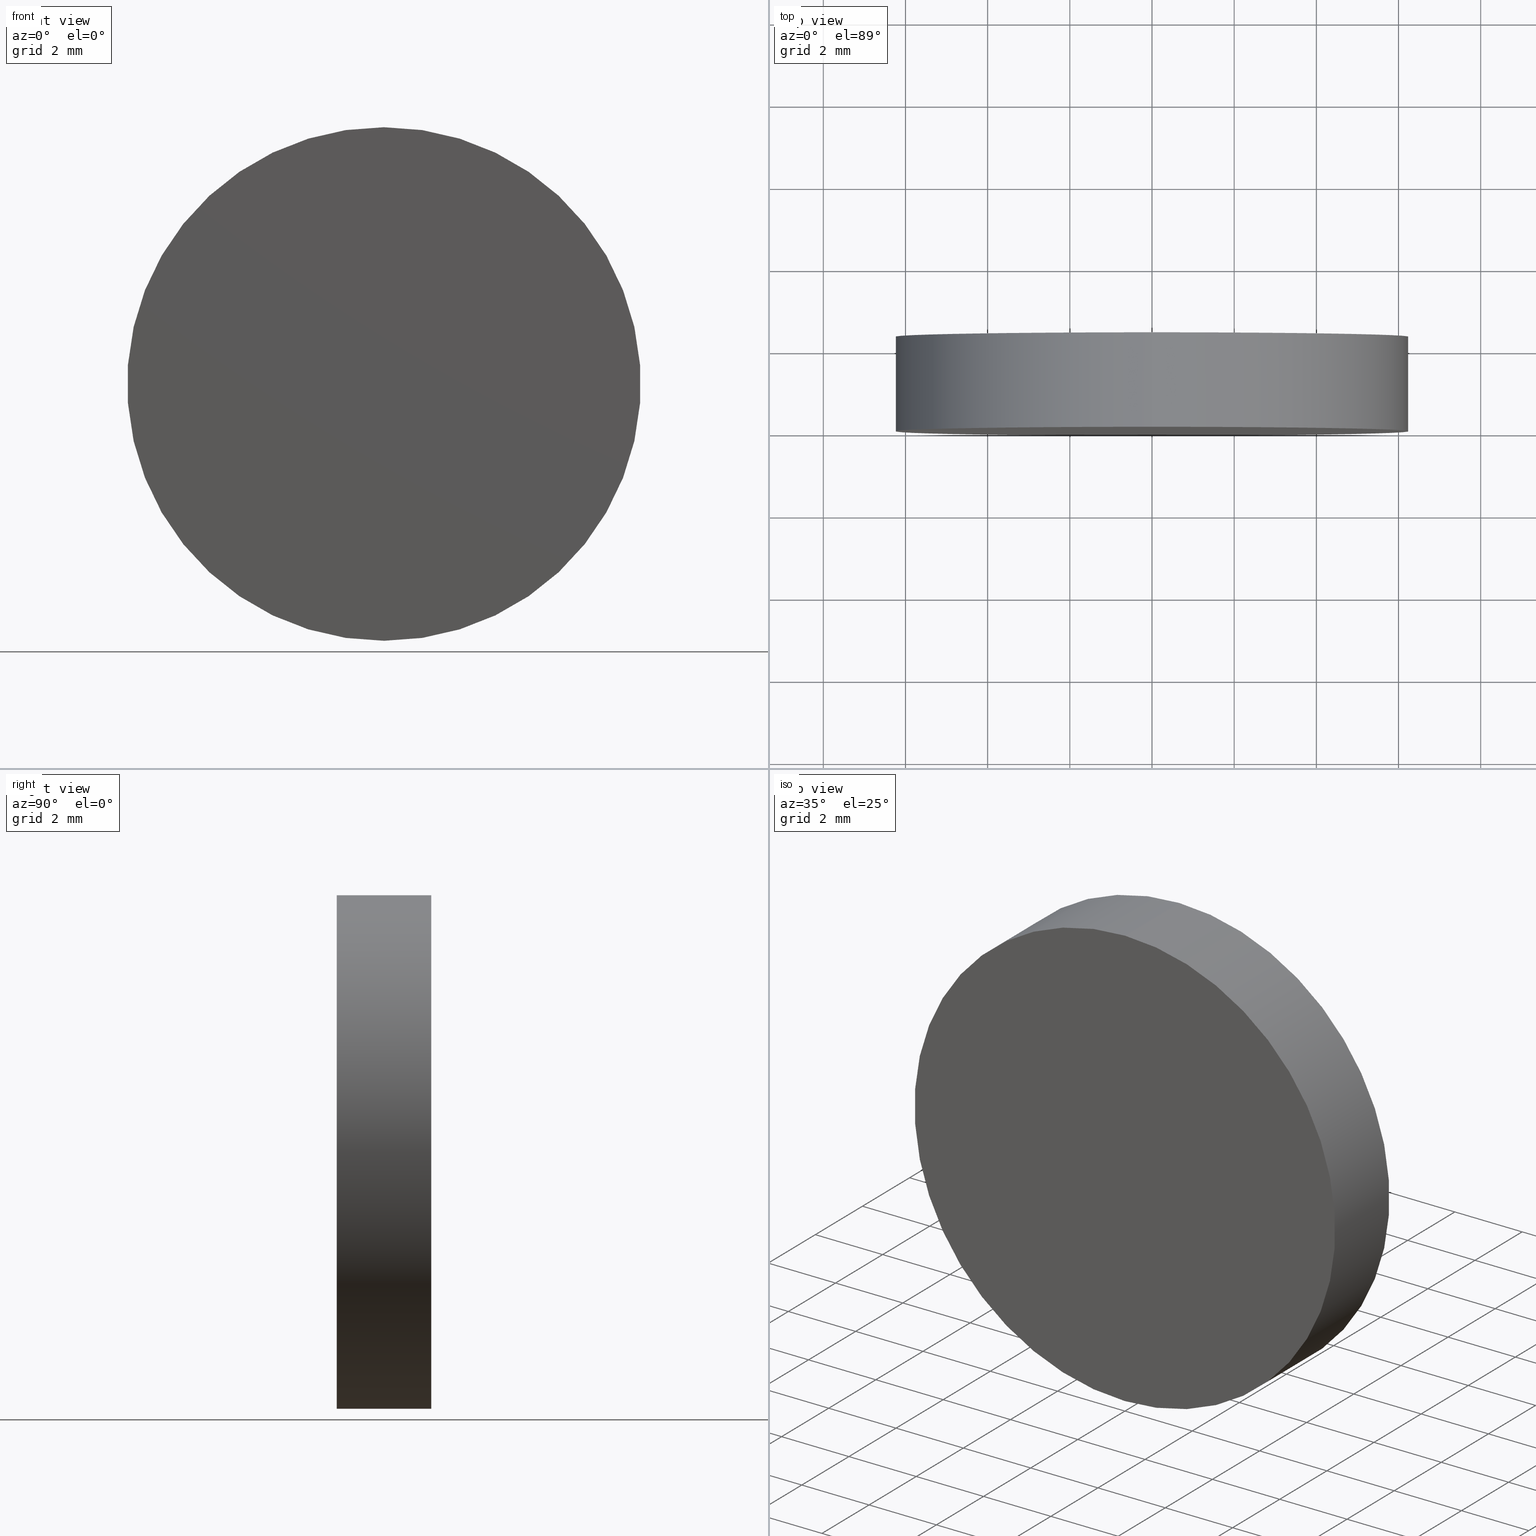
[diagram: canonical four-view strip — front | top / right | iso, engineering-drawing reading convention]
A machine part, canonical four-view strip (front | top / right | iso — engineering-drawing reading convention). The complete STEP part file that produces these views, byte-faithful:
ISO-10303-21;
HEADER;
FILE_DESCRIPTION (( 'STEP AP214' ),
    '1' );
FILE_NAME ('248576.STEP',
    '2019-08-02T08:42:04',
    ( 'user' ),
    ( '΢���й�' ),
    'SwSTEP 2.0',
    'SolidWorks 2016',
    '' );
FILE_SCHEMA (( 'AUTOMOTIVE_DESIGN' ));
ENDSEC;

DATA;
#1 = COLOUR_RGB ( '',1.000000000000000000, 1.000000000000000000, 1.000000000000000000 ) ;
#2 = PRODUCT_RELATED_PRODUCT_CATEGORY ( 'part', '', ( #131 ) ) ;
#3 = DIRECTION ( 'NONE',  ( 0.0000000000000000000, 0.0000000000000000000, 1.000000000000000000 ) ) ;
#4 = ORIENTED_EDGE ( 'NONE', *, *, #97, .F. ) ;
#5 = APPLICATION_CONTEXT ( 'automotive_design' ) ;
#6 = CARTESIAN_POINT ( 'NONE',  ( 0.0000000000000000000, 0.0000000000000000000, 0.0000000000000000000 ) ) ;
#7 =( NAMED_UNIT ( * ) SI_UNIT ( $, .STERADIAN. ) SOLID_ANGLE_UNIT ( ) );
#8 = CIRCLE ( 'NONE', #108, 6.250000000000000000 ) ;
#9 = ORIENTED_EDGE ( 'NONE', *, *, #35, .F. ) ;
#10 = FACE_OUTER_BOUND ( 'NONE', #90, .T. ) ;
#11 = AXIS2_PLACEMENT_3D ( 'NONE', #99, #21, #3 ) ;
#12 = EDGE_CURVE ( 'NONE', #66, #55, #112, .T. ) ;
#13 = DIRECTION ( 'NONE',  ( 0.0000000000000000000, 0.0000000000000000000, 1.000000000000000000 ) ) ;
#14 = FILL_AREA_STYLE ('',( #83 ) ) ;
#15 = APPLICATION_PROTOCOL_DEFINITION ( 'draft international standard', 'automotive_design', 1998, #5 ) ;
#16 = MECHANICAL_DESIGN_GEOMETRIC_PRESENTATION_REPRESENTATION (  '', ( #120 ), #75 ) ;
#17 = EDGE_LOOP ( 'NONE', ( #87, #9, #95, #29 ) ) ;
#18 = SURFACE_STYLE_FILL_AREA ( #89 ) ;
#19 = ORIENTED_EDGE ( 'NONE', *, *, #35, .T. ) ;
#20 = DIRECTION ( 'NONE',  ( -0.0000000000000000000, -1.000000000000000000, -0.0000000000000000000 ) ) ;
#21 = DIRECTION ( 'NONE',  ( 0.0000000000000000000, 1.000000000000000000, 0.0000000000000000000 ) ) ;
#22 = ORIENTED_EDGE ( 'NONE', *, *, #47, .F. ) ;
#23 = CARTESIAN_POINT ( 'NONE',  ( 7.654042494670957600E-016, 2.299999999999999800, 6.250000000000000000 ) ) ;
#24 = PLANE ( 'NONE',  #46 ) ;
#25 = CARTESIAN_POINT ( 'NONE',  ( 0.0000000000000000000, 2.299999999999999800, 0.0000000000000000000 ) ) ;
#26 = SURFACE_SIDE_STYLE ('',( #121 ) ) ;
#27 = UNCERTAINTY_MEASURE_WITH_UNIT (LENGTH_MEASURE( 1.000000000000000100E-005 ), #42, 'distance_accuracy_value', 'NONE');
#28 = PRESENTATION_STYLE_ASSIGNMENT (( #103 ) ) ;
#29 = ORIENTED_EDGE ( 'NONE', *, *, #47, .T. ) ;
#30 = ADVANCED_FACE ( 'NONE', ( #57 ), #125, .T. ) ;
#31 = PRODUCT_DEFINITION_FORMATION_WITH_SPECIFIED_SOURCE ( '�κ�', '', #131, .NOT_KNOWN. ) ;
#32 = VERTEX_POINT ( 'NONE', #34 ) ;
#33 = ORIENTED_EDGE ( 'NONE', *, *, #123, .F. ) ;
#34 = CARTESIAN_POINT ( 'NONE',  ( 0.0000000000000000000, 0.0000000000000000000, -6.250000000000000000 ) ) ;
#35 = EDGE_CURVE ( 'NONE', #55, #66, #140, .T. ) ;
#36 = CARTESIAN_POINT ( 'NONE',  ( 7.654042494670957600E-016, 0.0000000000000000000, 6.250000000000000000 ) ) ;
#37 = CARTESIAN_POINT ( 'NONE',  ( 0.0000000000000000000, 2.299999999999999800, 0.0000000000000000000 ) ) ;
#38 = CARTESIAN_POINT ( 'NONE',  ( 0.0000000000000000000, 0.0000000000000000000, 0.0000000000000000000 ) ) ;
#39 = DIRECTION ( 'NONE',  ( 0.0000000000000000000, 0.0000000000000000000, -1.000000000000000000 ) ) ;
#40 = CYLINDRICAL_SURFACE ( 'NONE', #118, 6.250000000000000000 ) ;
#41 = DIRECTION ( 'NONE',  ( 0.0000000000000000000, 1.000000000000000000, 0.0000000000000000000 ) ) ;
#42 =( LENGTH_UNIT ( ) NAMED_UNIT ( * ) SI_UNIT ( .MILLI., .METRE. ) );
#43 = EDGE_CURVE ( 'NONE', #66, #45, #85, .T. ) ;
#44 = VECTOR ( 'NONE', #113, 1000.000000000000000 ) ;
#45 = VERTEX_POINT ( 'NONE', #36 ) ;
#46 = AXIS2_PLACEMENT_3D ( 'NONE', #101, #114, #50 ) ;
#47 = EDGE_CURVE ( 'NONE', #32, #45, #8, .T. ) ;
#48 = CARTESIAN_POINT ( 'NONE',  ( 0.0000000000000000000, 2.299999999999999800, 0.0000000000000000000 ) ) ;
#49 = SURFACE_SIDE_STYLE ('',( #18 ) ) ;
#50 = DIRECTION ( 'NONE',  ( 0.0000000000000000000, -0.0000000000000000000, 1.000000000000000000 ) ) ;
#51 = PRODUCT_DEFINITION_SHAPE ( 'NONE', 'NONE',  #76 ) ;
#52 =( NAMED_UNIT ( * ) SI_UNIT ( $, .STERADIAN. ) SOLID_ANGLE_UNIT ( ) );
#53 =( GEOMETRIC_REPRESENTATION_CONTEXT ( 3 ) GLOBAL_UNCERTAINTY_ASSIGNED_CONTEXT ( ( #133 ) ) GLOBAL_UNIT_ASSIGNED_CONTEXT ( ( #138, #73, #7 ) ) REPRESENTATION_CONTEXT ( 'NONE', 'WORKASPACE' ) );
#54 = SHAPE_DEFINITION_REPRESENTATION ( #51, #107 ) ;
#55 = VERTEX_POINT ( 'NONE', #124 ) ;
#56 = MECHANICAL_DESIGN_GEOMETRIC_PRESENTATION_REPRESENTATION (  '', ( #126 ), #77 ) ;
#57 = FACE_OUTER_BOUND ( 'NONE', #117, .T. ) ;
#58 = COLOUR_RGB ( '',1.000000000000000000, 1.000000000000000000, 1.000000000000000000 ) ;
#59 = ORIENTED_EDGE ( 'NONE', *, *, #12, .T. ) ;
#60 = FILL_AREA_STYLE_COLOUR ( '', #1 ) ;
#61 = EDGE_LOOP ( 'NONE', ( #22, #33 ) ) ;
#62 =( LENGTH_UNIT ( ) NAMED_UNIT ( * ) SI_UNIT ( .MILLI., .METRE. ) );
#63 = AXIS2_PLACEMENT_3D ( 'NONE', #6, #64, #139 ) ;
#64 = DIRECTION ( 'NONE',  ( 0.0000000000000000000, 0.0000000000000000000, 1.000000000000000000 ) ) ;
#65 = CLOSED_SHELL ( 'NONE', ( #106, #132, #30, #104 ) ) ;
#66 = VERTEX_POINT ( 'NONE', #23 ) ;
#67 = PRODUCT_DEFINITION_CONTEXT ( 'detailed design', #129, 'design' ) ;
#68 = CIRCLE ( 'NONE', #109, 6.250000000000000000 ) ;
#69 = CARTESIAN_POINT ( 'NONE',  ( 7.654042494670957600E-016, 2.299999999999999800, 6.250000000000000000 ) ) ;
#70 = DIRECTION ( 'NONE',  ( 0.0000000000000000000, 1.000000000000000000, 0.0000000000000000000 ) ) ;
#71 =( NAMED_UNIT ( * ) PLANE_ANGLE_UNIT ( ) SI_UNIT ( $, .RADIAN. ) );
#72 = LINE ( 'NONE', #79, #44 ) ;
#73 =( NAMED_UNIT ( * ) PLANE_ANGLE_UNIT ( ) SI_UNIT ( $, .RADIAN. ) );
#74 = APPLICATION_PROTOCOL_DEFINITION ( 'draft international standard', 'automotive_design', 1998, #129 ) ;
#75 =( GEOMETRIC_REPRESENTATION_CONTEXT ( 3 ) GLOBAL_UNCERTAINTY_ASSIGNED_CONTEXT ( ( #119 ) ) GLOBAL_UNIT_ASSIGNED_CONTEXT ( ( #62, #71, #136 ) ) REPRESENTATION_CONTEXT ( 'NONE', 'WORKASPACE' ) );
#76 = PRODUCT_DEFINITION ( 'δ֪', '', #31, #67 ) ;
#77 =( GEOMETRIC_REPRESENTATION_CONTEXT ( 3 ) GLOBAL_UNCERTAINTY_ASSIGNED_CONTEXT ( ( #27 ) ) GLOBAL_UNIT_ASSIGNED_CONTEXT ( ( #42, #116, #52 ) ) REPRESENTATION_CONTEXT ( 'NONE', 'WORKASPACE' ) );
#78 = MANIFOLD_SOLID_BREP ( '͹̨-����1', #65 ) ;
#79 = CARTESIAN_POINT ( 'NONE',  ( 0.0000000000000000000, 2.299999999999999800, -6.250000000000000000 ) ) ;
#80 = DIRECTION ( 'NONE',  ( 0.0000000000000000000, -0.0000000000000000000, 1.000000000000000000 ) ) ;
#81 = AXIS2_PLACEMENT_3D ( 'NONE', #25, #137, #84 ) ;
#82 = FACE_OUTER_BOUND ( 'NONE', #17, .T. ) ;
#83 = FILL_AREA_STYLE_COLOUR ( '', #58 ) ;
#84 = DIRECTION ( 'NONE',  ( 0.0000000000000000000, 0.0000000000000000000, -1.000000000000000000 ) ) ;
#85 = LINE ( 'NONE', #69, #110 ) ;
#86 = ORIENTED_EDGE ( 'NONE', *, *, #12, .F. ) ;
#87 = ORIENTED_EDGE ( 'NONE', *, *, #43, .F. ) ;
#88 = ORIENTED_EDGE ( 'NONE', *, *, #43, .T. ) ;
#89 = FILL_AREA_STYLE ('',( #60 ) ) ;
#90 = EDGE_LOOP ( 'NONE', ( #86, #88, #122, #4 ) ) ;
#91 = DIRECTION ( 'NONE',  ( 0.0000000000000000000, 1.000000000000000000, 0.0000000000000000000 ) ) ;
#92 = DIRECTION ( 'NONE',  ( -0.0000000000000000000, -1.000000000000000000, -0.0000000000000000000 ) ) ;
#93 = CYLINDRICAL_SURFACE ( 'NONE', #81, 6.250000000000000000 ) ;
#94 = PRESENTATION_LAYER_ASSIGNMENT (  '', '', ( #120 ) ) ;
#95 = ORIENTED_EDGE ( 'NONE', *, *, #97, .T. ) ;
#96 = PRODUCT_CONTEXT ( 'NONE', #5, 'mechanical' ) ;
#97 = EDGE_CURVE ( 'NONE', #55, #32, #72, .T. ) ;
#98 = DIRECTION ( 'NONE',  ( 0.0000000000000000000, 0.0000000000000000000, 1.000000000000000000 ) ) ;
#99 = CARTESIAN_POINT ( 'NONE',  ( 0.0000000000000000000, 2.299999999999999800, 0.0000000000000000000 ) ) ;
#100 = PRESENTATION_LAYER_ASSIGNMENT (  '', '', ( #126 ) ) ;
#101 = CARTESIAN_POINT ( 'NONE',  ( 0.0000000000000000000, 0.0000000000000000000, 0.0000000000000000000 ) ) ;
#102 = CARTESIAN_POINT ( 'NONE',  ( 0.0000000000000000000, 0.0000000000000000000, 0.0000000000000000000 ) ) ;
#103 = SURFACE_STYLE_USAGE ( .BOTH. , #26 ) ;
#104 = ADVANCED_FACE ( 'NONE', ( #130 ), #24, .F. ) ;
#105 = AXIS2_PLACEMENT_3D ( 'NONE', #37, #70, #80 ) ;
#106 = ADVANCED_FACE ( 'NONE', ( #10 ), #40, .T. ) ;
#107 = ADVANCED_BREP_SHAPE_REPRESENTATION ( '248576', ( #78, #63 ), #53 ) ;
#108 = AXIS2_PLACEMENT_3D ( 'NONE', #38, #91, #13 ) ;
#109 = AXIS2_PLACEMENT_3D ( 'NONE', #102, #41, #115 ) ;
#110 = VECTOR ( 'NONE', #20, 1000.000000000000000 ) ;
#111 = DIRECTION ( 'NONE',  ( 0.0000000000000000000, 1.000000000000000000, 0.0000000000000000000 ) ) ;
#112 = CIRCLE ( 'NONE', #11, 6.250000000000000000 ) ;
#113 = DIRECTION ( 'NONE',  ( -0.0000000000000000000, -1.000000000000000000, -0.0000000000000000000 ) ) ;
#114 = DIRECTION ( 'NONE',  ( 0.0000000000000000000, 1.000000000000000000, 0.0000000000000000000 ) ) ;
#115 = DIRECTION ( 'NONE',  ( 0.0000000000000000000, 0.0000000000000000000, 1.000000000000000000 ) ) ;
#116 =( NAMED_UNIT ( * ) PLANE_ANGLE_UNIT ( ) SI_UNIT ( $, .RADIAN. ) );
#117 = EDGE_LOOP ( 'NONE', ( #19, #59 ) ) ;
#118 = AXIS2_PLACEMENT_3D ( 'NONE', #128, #92, #39 ) ;
#119 = UNCERTAINTY_MEASURE_WITH_UNIT (LENGTH_MEASURE( 1.000000000000000100E-005 ), #62, 'distance_accuracy_value', 'NONE');
#120 = STYLED_ITEM ( 'NONE', ( #135 ), #78 ) ;
#121 = SURFACE_STYLE_FILL_AREA ( #14 ) ;
#122 = ORIENTED_EDGE ( 'NONE', *, *, #123, .T. ) ;
#123 = EDGE_CURVE ( 'NONE', #45, #32, #68, .T. ) ;
#124 = CARTESIAN_POINT ( 'NONE',  ( 0.0000000000000000000, 2.299999999999999800, -6.250000000000000000 ) ) ;
#125 = PLANE ( 'NONE',  #105 ) ;
#126 = STYLED_ITEM ( 'NONE', ( #28 ), #107 ) ;
#127 = SURFACE_STYLE_USAGE ( .BOTH. , #49 ) ;
#128 = CARTESIAN_POINT ( 'NONE',  ( 0.0000000000000000000, 2.299999999999999800, 0.0000000000000000000 ) ) ;
#129 = APPLICATION_CONTEXT ( 'automotive_design' ) ;
#130 = FACE_OUTER_BOUND ( 'NONE', #61, .T. ) ;
#131 = PRODUCT ( '248576', '248576', '', ( #96 ) ) ;
#132 = ADVANCED_FACE ( 'NONE', ( #82 ), #93, .T. ) ;
#133 = UNCERTAINTY_MEASURE_WITH_UNIT (LENGTH_MEASURE( 1.000000000000000100E-005 ), #138, 'distance_accuracy_value', 'NONE');
#134 = AXIS2_PLACEMENT_3D ( 'NONE', #48, #111, #98 ) ;
#135 = PRESENTATION_STYLE_ASSIGNMENT (( #127 ) ) ;
#136 =( NAMED_UNIT ( * ) SI_UNIT ( $, .STERADIAN. ) SOLID_ANGLE_UNIT ( ) );
#137 = DIRECTION ( 'NONE',  ( -0.0000000000000000000, -1.000000000000000000, -0.0000000000000000000 ) ) ;
#138 =( LENGTH_UNIT ( ) NAMED_UNIT ( * ) SI_UNIT ( .MILLI., .METRE. ) );
#139 = DIRECTION ( 'NONE',  ( 1.000000000000000000, 0.0000000000000000000, 0.0000000000000000000 ) ) ;
#140 = CIRCLE ( 'NONE', #134, 6.250000000000000000 ) ;
ENDSEC;
END-ISO-10303-21;
